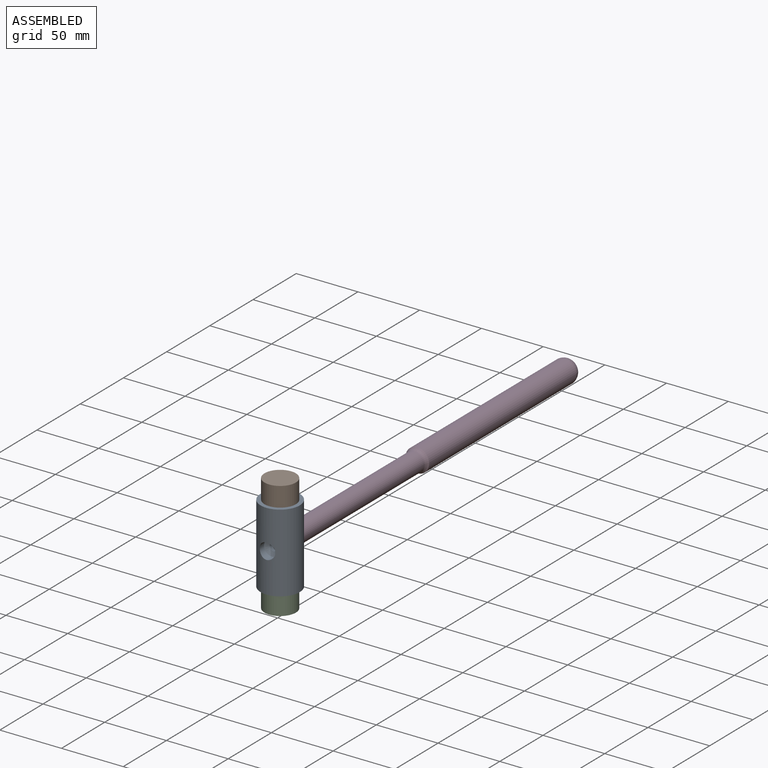
[diagram: assembled view]
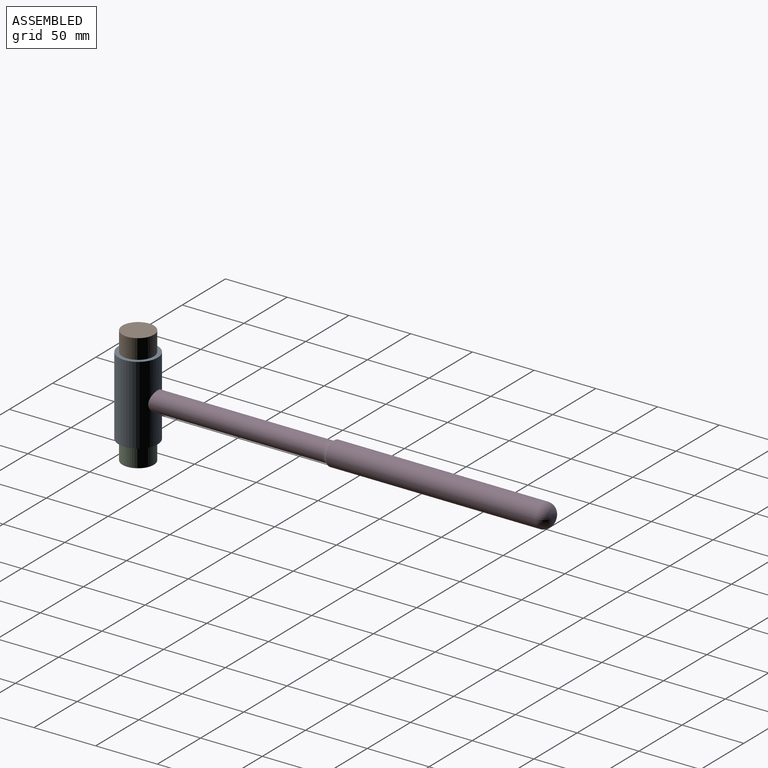
[diagram: assembled view, second angle]
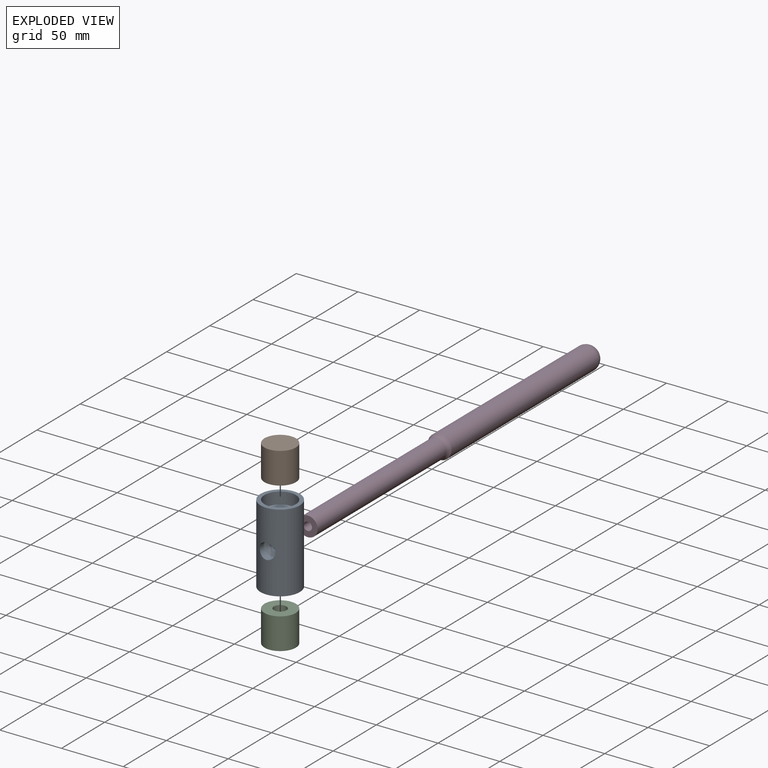
[diagram: exploded view]
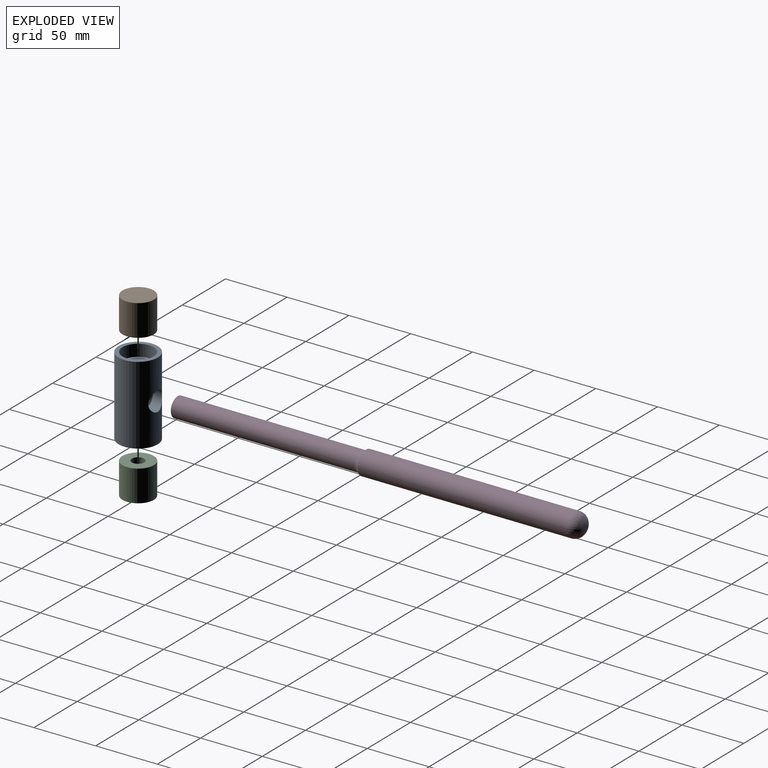
[diagram: exploded view, second angle]
ASSEMBLY  parts=4 mates=3
PART A: 13 faces, bbox 31.8x63.5x31.8 mm
  f0: cylinder r=15.88mm len=63.5mm, axis (0,-1,0), area 5999.5mm2, adj f5,f6,f9,f11
  f1: cylinder r=5.15mm len=44.45mm, axis (0,-1,0), area 1334mm2, adj f2,f3,f8,f12
  f2: cylinder r=3.17mm len=6.35mm, axis (0,0,1), area 59.8mm2, adj f1,f10
  f3: plane 25.4x25.4mm, normal (0,1,0), area 423.4mm2, adj f1,f4
  f4: cylinder r=12.7mm len=25.4mm, axis (0,-1,0), area 760.1mm2, adj f3,f5
  f5: plane 31.75x31.75mm, normal (0,1,0), area 285mm2, adj f0,f4
  f6: plane 31.75x31.75mm, normal (0,-1,0), area 285mm2, adj f0,f7
  f7: cylinder r=12.7mm len=25.4mm, axis (0,-1,0), area 760.1mm2, adj f6,f8
  f8: plane 25.4x25.4mm, normal (0,-1,0), area 423.4mm2, adj f1,f7
  f9: cylinder r=6.35mm len=12.7mm, axis (0,0,1), area 227.2mm2, adj f0,f10
  f10: cone r=0mm half-angle=59deg, axis (0,0,1), area 110.8mm2, adj f2,f9
  f11: cylinder r=7.94mm len=15.88mm, axis (0,0,-1), area 423mm2, adj f0,f12
  f12: cone r=0mm half-angle=59deg, axis (0,0,-1), area 154.1mm2, adj f1,f11
PART B: 5 faces, bbox 25.4x25.4x25.4 mm
  f0: cylinder r=12.7mm len=25.4mm, axis (-1,0,0), area 2026.8mm2, adj f1,f2
  f1: plane 25.4x25.4mm, normal (1,0,0), area 423.4mm2, adj f0,f4
  f2: plane 25.4x25.4mm, normal (-1,0,0), area 506.7mm2, adj f0
  f3: cone r=0mm half-angle=59deg, axis (1,0,0), area 97.2mm2, adj f4
  f4: cylinder r=5.15mm len=17.95mm, axis (1,0,0), area 580.8mm2, adj f1,f3
PART C: same geometry as B
PART D: 8 faces, bbox 28.2x330.2x28.2 mm
  f0: cylinder r=7.94mm len=148.71mm, axis (0,-1,0), area 7416.6mm2, adj f1,f4
  f1: plane 15.88x15.88mm, normal (0,-1,0), area 161.6mm2, adj f0,f6
  f2: cylinder r=9.53mm len=169.86mm, axis (0,-1,0), area 10165.8mm2, adj f4,f7
  f3: plane 3.18x3.18mm, normal (0,1,0), area 7.9mm2, adj f7
  f4: torus R=13.02mm, axis (0,1,0), area 220mm2, adj f0,f2
  f5: cone r=0mm half-angle=59deg, axis (0,-1,0), area 42.4mm2, adj f6
  f6: cylinder r=3.4mm len=16.45mm, axis (0,-1,0), area 351.4mm2, adj f1,f5
  f7: torus R=1.59mm, axis (0,1,0), area 520.2mm2, adj f2,f3
PLACE A rot(axis=(1,0,0),90deg) t=(3.39,26.75,61.89)mm
PLACE B rot(axis=(-0.71,0,0.71),180deg) t=(3.39,26.75,87.29)mm
PLACE C rot(axis=(0,-1,0),90deg) t=(3.39,26.75,-7.96)mm
PLACE D t=(3.39,33.1,39.6)mm
MATE fastened D.f0 <-> A.f11  axis (0,-1,0) through (3.39,33.1,39.6)mm
MATE fastened C.f0 <-> A.f0  axis (0,0,-1) through (3.39,26.75,17.44)mm
MATE fastened B.f0 <-> A.f0  axis (0,0,-1) through (3.39,26.75,61.89)mm
